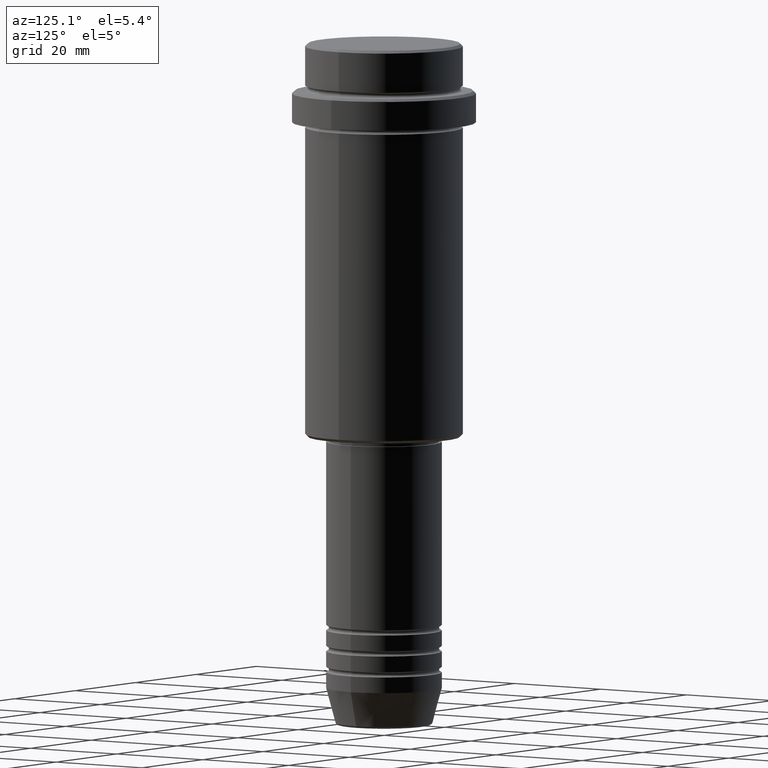
[diagram: clean part render]
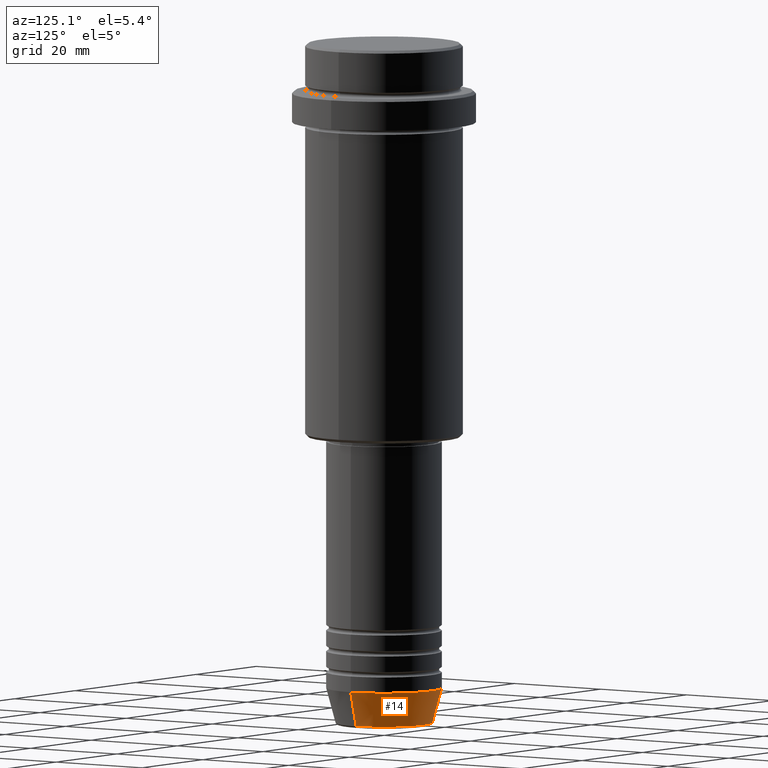
[diagram: same view with one face highlighted and labeled with its STEP entity id]
A machine part, auxiliary view. The second image highlights one B-rep face of the part: STEP entity #14.
In plain terms, the highlighted conical surface has half-angle 15 deg.
Its self-contained STEP definition (entity closure, byte-faithful):
#14 = ADVANCED_FACE ( 'NONE', ( #762 ), #399, .T. ) ;
#27 = EDGE_CURVE ( 'NONE', #499, #68, #1376, .T. ) ;
#38 = LINE ( 'NONE', #672, #1401 ) ;
#68 = VERTEX_POINT ( 'NONE', #296 ) ;
#224 = DIRECTION ( 'NONE',  ( 0.2588190451025213501, 0.000000000000000000, 0.9659258262890680902 ) ) ;
#234 = CARTESIAN_POINT ( 'NONE',  ( 0.000000000000000000, 0.000000000000000000, -123.0000000000000000 ) ) ;
#296 = CARTESIAN_POINT ( 'NONE',  ( -11.00000000000000000, 1.347111479062088405E-15, -123.0000000000000000 ) ) ;
#347 = ORIENTED_EDGE ( 'NONE', *, *, #584, .T. ) ;
#399 = CONICAL_SURFACE ( 'NONE', #909, 11.00000000000000000, 0.2617993877991500740 ) ;
#489 = CIRCLE ( 'NONE', #1039, 9.223655072137187716 ) ;
#496 = CARTESIAN_POINT ( 'NONE',  ( 0.000000000000000000, 0.000000000000000000, -129.6294095225512422 ) ) ;
#499 = VERTEX_POINT ( 'NONE', #1074 ) ;
#548 = DIRECTION ( 'NONE',  ( -0.000000000000000000, -0.000000000000000000, 1.000000000000000000 ) ) ;
#577 = ORIENTED_EDGE ( 'NONE', *, *, #686, .F. ) ;
#583 = VECTOR ( 'NONE', #224, 1000.000000000000000 ) ;
#584 = EDGE_CURVE ( 'NONE', #1094, #68, #38, .T. ) ;
#642 = EDGE_CURVE ( 'NONE', #1340, #1094, #489, .T. ) ;
#651 = LINE ( 'NONE', #1079, #583 ) ;
#672 = CARTESIAN_POINT ( 'NONE',  ( -11.00000000000000000, 1.347111479062088405E-15, -123.0000000000000000 ) ) ;
#686 = EDGE_CURVE ( 'NONE', #1340, #499, #651, .T. ) ;
#762 = FACE_OUTER_BOUND ( 'NONE', #1095, .T. ) ;
#776 = CARTESIAN_POINT ( 'NONE',  ( 0.000000000000000000, 0.000000000000000000, -123.0000000000000000 ) ) ;
#777 = ORIENTED_EDGE ( 'NONE', *, *, #642, .T. ) ;
#783 = DIRECTION ( 'NONE',  ( -0.000000000000000000, -0.000000000000000000, 1.000000000000000000 ) ) ;
#909 = AXIS2_PLACEMENT_3D ( 'NONE', #776, #783, #1111 ) ;
#993 = DIRECTION ( 'NONE',  ( 1.000000000000000000, 0.000000000000000000, 0.000000000000000000 ) ) ;
#1032 = DIRECTION ( 'NONE',  ( -0.000000000000000000, -0.000000000000000000, 1.000000000000000000 ) ) ;
#1039 = AXIS2_PLACEMENT_3D ( 'NONE', #496, #1032, #1358 ) ;
#1074 = CARTESIAN_POINT ( 'NONE',  ( 11.00000000000000000, 0.000000000000000000, -123.0000000000000000 ) ) ;
#1079 = CARTESIAN_POINT ( 'NONE',  ( 11.00000000000000000, 0.000000000000000000, -123.0000000000000000 ) ) ;
#1094 = VERTEX_POINT ( 'NONE', #1163 ) ;
#1095 = EDGE_LOOP ( 'NONE', ( #777, #347, #1155, #577 ) ) ;
#1100 = DIRECTION ( 'NONE',  ( -0.2588190451025213501, 3.169619151431772337E-17, 0.9659258262890680902 ) ) ;
#1111 = DIRECTION ( 'NONE',  ( 1.000000000000000000, 0.000000000000000000, 0.000000000000000000 ) ) ;
#1112 = CARTESIAN_POINT ( 'NONE',  ( 9.223655072137187716, 0.000000000000000000, -129.6294095225512422 ) ) ;
#1148 = AXIS2_PLACEMENT_3D ( 'NONE', #234, #548, #993 ) ;
#1155 = ORIENTED_EDGE ( 'NONE', *, *, #27, .F. ) ;
#1163 = CARTESIAN_POINT ( 'NONE',  ( -9.223655072137187716, 1.238341722557647004E-15, -129.6294095225512422 ) ) ;
#1340 = VERTEX_POINT ( 'NONE', #1112 ) ;
#1358 = DIRECTION ( 'NONE',  ( 1.000000000000000000, 0.000000000000000000, 0.000000000000000000 ) ) ;
#1376 = CIRCLE ( 'NONE', #1148, 11.00000000000000000 ) ;
#1401 = VECTOR ( 'NONE', #1100, 1000.000000000000000 ) ;